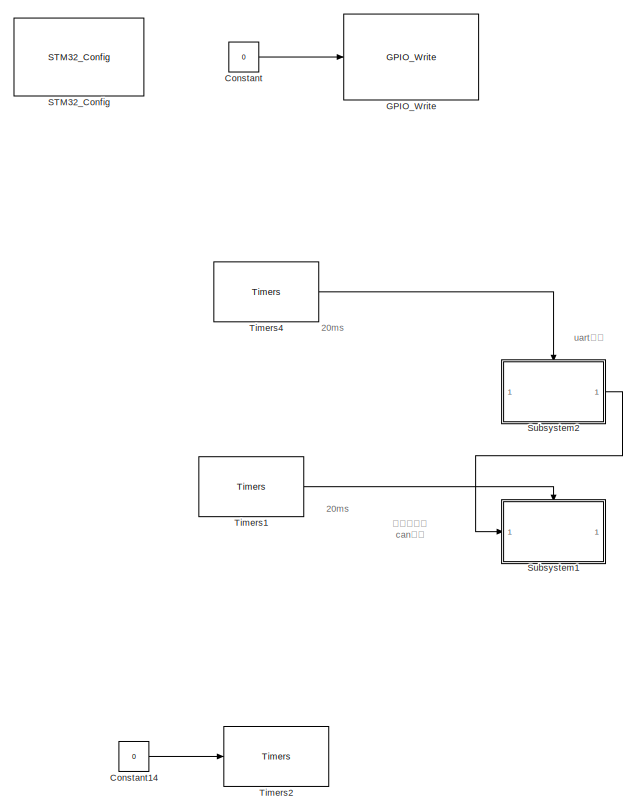
[diagram: root canvas - part 1/2, left side, full height]
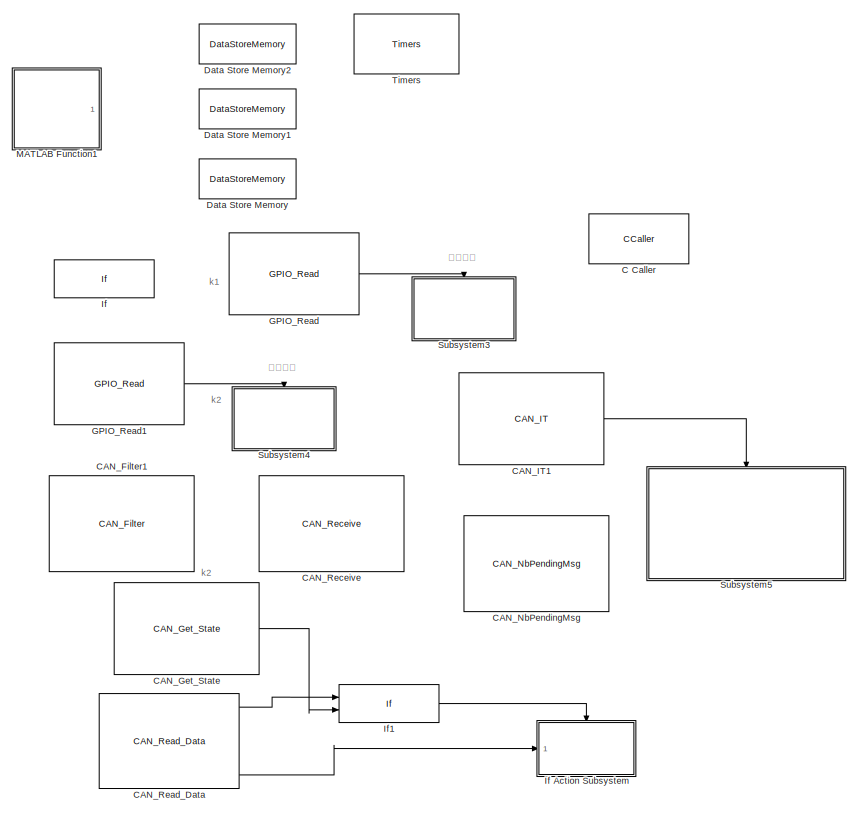
[diagram: root canvas - part 2/2, right side, full height]
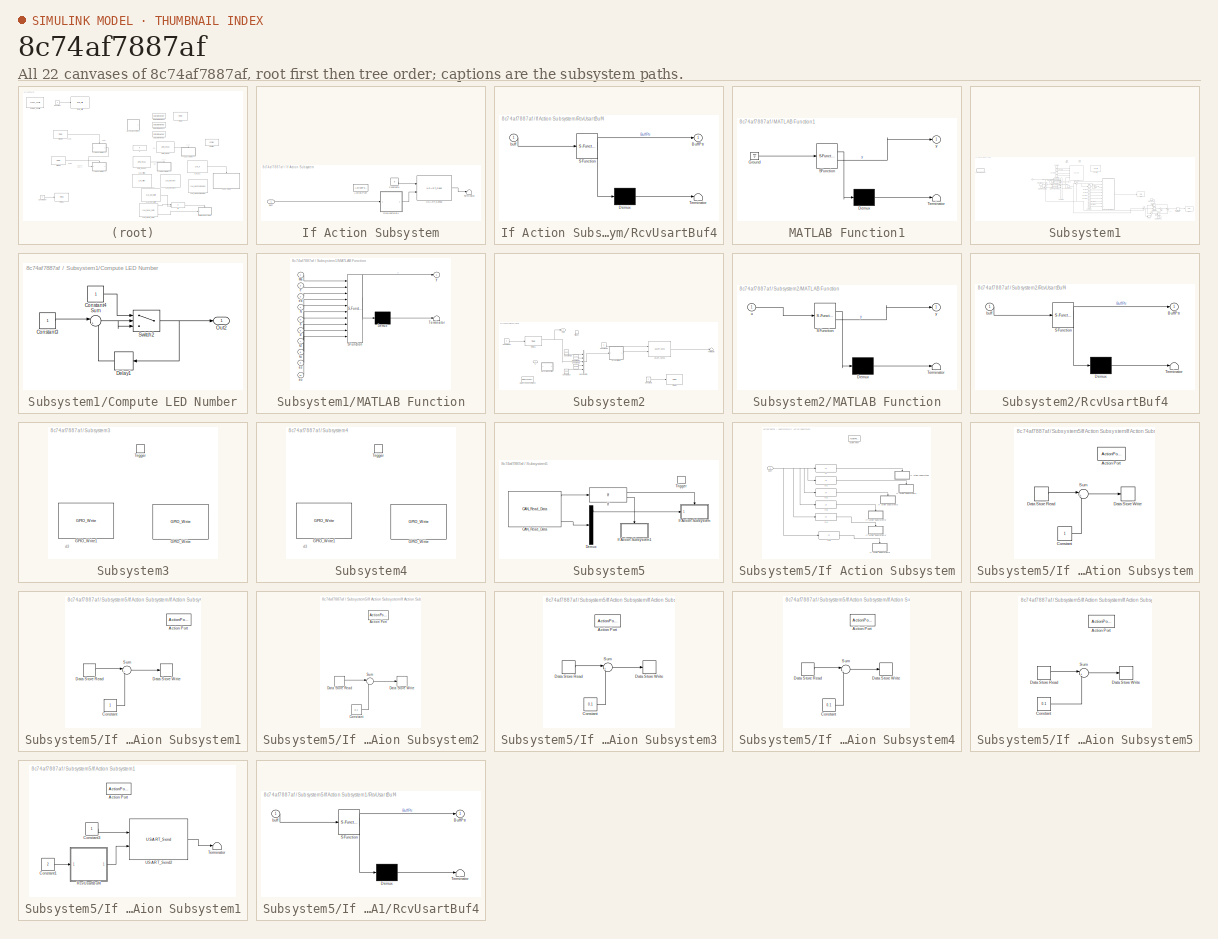
[diagram: thumbnail index - all 22 canvases of the model, root first then tree order]
MODEL slx_8c74af7887af
KIND model
CONFIG AbsTol = auto
CONFIG EnableMultiTasking = off
CONFIG FixedStep = 0.001
CONFIG MaxStep = auto
CONFIG MinStep = auto
CONFIG RelTol = 1e-3
CONFIG SampleTimeConstraint = Unconstrained
CONFIG SolverName = FixedStepDiscrete
CONFIG StartTime = 0.0
CONFIG StopTime = 10.0
BLOCK [CCaller] C Caller
  FunctionName = ccpQueueWrite
  Ports = []
BLOCK [Reference] CAN_Filter1  REF=CAN_Lib/CAN_Filter
  NameLocation = top
  Ports = []
  SourceBlock = CAN_Lib/CAN_Filter
  SourceProductName = Target Support Package - STM32 Adapter
  SourceType = CAN_Filter
BLOCK [Reference] CAN_Get_State  REF=CAN_Lib/CAN_Get_State
  Commented = on
  NameLocation = top
  Ports = [0, 1]
  SourceBlock = CAN_Lib/CAN_Get_State
  SourceProductName = Target Support Package - STM32 Adapter
  SourceType = CAN_Get_State
BLOCK [Reference] CAN_IT1  REF=CAN_Lib/CAN_IT
  NameLocation = top
  Ports = [0, 1]
  SourceBlock = CAN_Lib/CAN_IT
  SourceProductName = Target Support Package - STM32 Adapter
  SourceType = CAN_IT
BLOCK [Reference] CAN_NbPendingMsg  REF=CAN_Lib/CAN_NbPendingMsg
  NameLocation = top
  Ports = [0, 1]
  SourceBlock = CAN_Lib/CAN_NbPendingMsg
  SourceProductName = Target Support Package - STM32 Adapter
  SourceType = CAN_NbPendingMsg
BLOCK [Reference] CAN_Read_Data  REF=CAN_Lib/CAN_Read_Data
  Commented = on
  NameLocation = top
  Ports = [0, 6]
  SourceBlock = CAN_Lib/CAN_Read_Data
  SourceProductName = Target Support Package - STM32 Adapter
  SourceType = CAN_Read_Data
BLOCK [Reference] CAN_Receive  REF=CAN_Lib/CAN_Receive
  NameLocation = top
  Ports = []
  SourceBlock = CAN_Lib/CAN_Receive
  SourceProductName = Target Support Package - STM32 Adapter
  SourceType = CAN_Receive
BLOCK [Constant] Constant
  Commented = on
  Value = 0
BLOCK [Constant] Constant14
  Commented = on
  OutDataTypeStr = uint16
  Value = 0
BLOCK [DataStoreMemory] Data Store Memory
  DataStoreName = execpt
  InitialValue = 10
  ShowAdditionalParam = off
  WriteAfterWriteMsg = warning
BLOCK [DataStoreMemory] Data Store Memory1
  DataStoreName = kp
  InitialValue = 1
  ShowAdditionalParam = off
  WriteAfterWriteMsg = warning
BLOCK [DataStoreMemory] Data Store Memory2
  DataStoreName = ki
  InitialValue = 1
  ShowAdditionalParam = off
  WriteAfterWriteMsg = warning
BLOCK [Reference] GPIO_Read  REF=GPIO_Lib/GPIO_Read
  NameLocation = top
  Ports = [0, 1]
  SourceBlock = GPIO_Lib/GPIO_Read
  SourceProductName = Target Support Package - STM32 Adapter
  SourceType = GPIO_Read
BLOCK [Reference] GPIO_Read1  REF=GPIO_Lib/GPIO_Read
  NameLocation = top
  Ports = [0, 1]
  SourceBlock = GPIO_Lib/GPIO_Read
  SourceProductName = Target Support Package - STM32 Adapter
  SourceType = GPIO_Read
BLOCK [Reference] GPIO_Write  REF=GPIO_Lib/GPIO_Write
  Commented = on
  NameLocation = top
  Ports = [1]
  SourceBlock = GPIO_Lib/GPIO_Write
  SourceProductName = Target Support Package - STM32 Adapter
  SourceType = GPIO_Write
BLOCK [If] If
  Commented = on
  Ports = [1, 2]
BLOCK [SubSystem] If Action Subsystem
  Commented = on
  Ports = [1, 0, 0, 0, 0, 0, 0, 1]
  RequestExecContextInheritance = off
  TreatAsAtomicUnit = on
BLOCK [ActionPort] If Action Subsystem/Action Port
  ActionPortLabel = if(u1 == 0 & u2~=0)
BLOCK [Constant] If Action Subsystem/Constant3
  OutDataTypeStr = uint16
  Value = 8
BLOCK [SubSystem] If Action Subsystem/RcvUsartBuf4
  ErrorFcn = Stateflow.Translate.translate
  PermitHierarchicalResolution = ExplicitOnly
  Ports = [1, 1]
  RequestExecContextInheritance = off
  SFBlockType = MATLAB Function
  TreatAsAtomicUnit = on
BLOCK [Demux] If Action Subsystem/RcvUsartBuf4/ Demux 
  Outputs = 1
  Ports = [1, 1]
BLOCK [S-Function] If Action Subsystem/RcvUsartBuf4/ SFunction 
  EnableBusSupport = on
  FunctionName = sf_sfun
  PortCounts = [1 2]
  Ports = [1, 2]
  SFcnIsStateOwnerBlock = off
  SFunctionDeploymentMode = off
  Tag = Stateflow S-Function 5
BLOCK [Terminator] If Action Subsystem/RcvUsartBuf4/ Terminator 
BLOCK [Outport] If Action Subsystem/RcvUsartBuf4/BuffPtr
  VectorParamsAs1DForOutWhenUnconnected = off
BLOCK [Inport] If Action Subsystem/RcvUsartBuf4/buff
BLOCK [Terminator] If Action Subsystem/Terminator
BLOCK [Reference] If Action Subsystem/USART_Send2  REF=USART_Lib/USART_Send
  NameLocation = top
  Ports = [2, 1]
  SourceBlock = USART_Lib/USART_Send
  SourceProductName = Target Support Package - STM32 Adapter
  SourceType = USART_Send
BLOCK [Inport] If Action Subsystem/buff
BLOCK [If] If1
  Commented = on
  IfExpression = u1 == 0 & u2~=0
  NumInputs = 2
  Ports = [2, 1]
  ShowElse = off
BLOCK [SubSystem] MATLAB Function1
  Commented = on
  ErrorFcn = Stateflow.Translate.translate
  PermitHierarchicalResolution = ExplicitOnly
  Ports = [0, 1]
  RequestExecContextInheritance = off
  SFBlockType = MATLAB Function
  TreatAsAtomicUnit = on
BLOCK [Demux] MATLAB Function1/ Demux 
  Outputs = 1
  Ports = [1, 1]
BLOCK [Ground] MATLAB Function1/ Ground 
BLOCK [S-Function] MATLAB Function1/ SFunction 
  EnableBusSupport = on
  FunctionName = sf_sfun
  PortCounts = [1 2]
  Ports = [1, 2]
  SFcnIsStateOwnerBlock = off
  SFunctionDeploymentMode = off
  Tag = Stateflow S-Function 1
BLOCK [Terminator] MATLAB Function1/ Terminator 
BLOCK [Outport] MATLAB Function1/y
BLOCK [Reference] STM32_Config  REF=STM32_Config_Lib/STM32_Config
  NameLocation = top
  Ports = []
  Priority = 0
  SourceBlock = STM32_Config_Lib/STM32_Config
  SourceProductName = Target Support Package - STM32 Adapter
  SourceType = STM32_Config
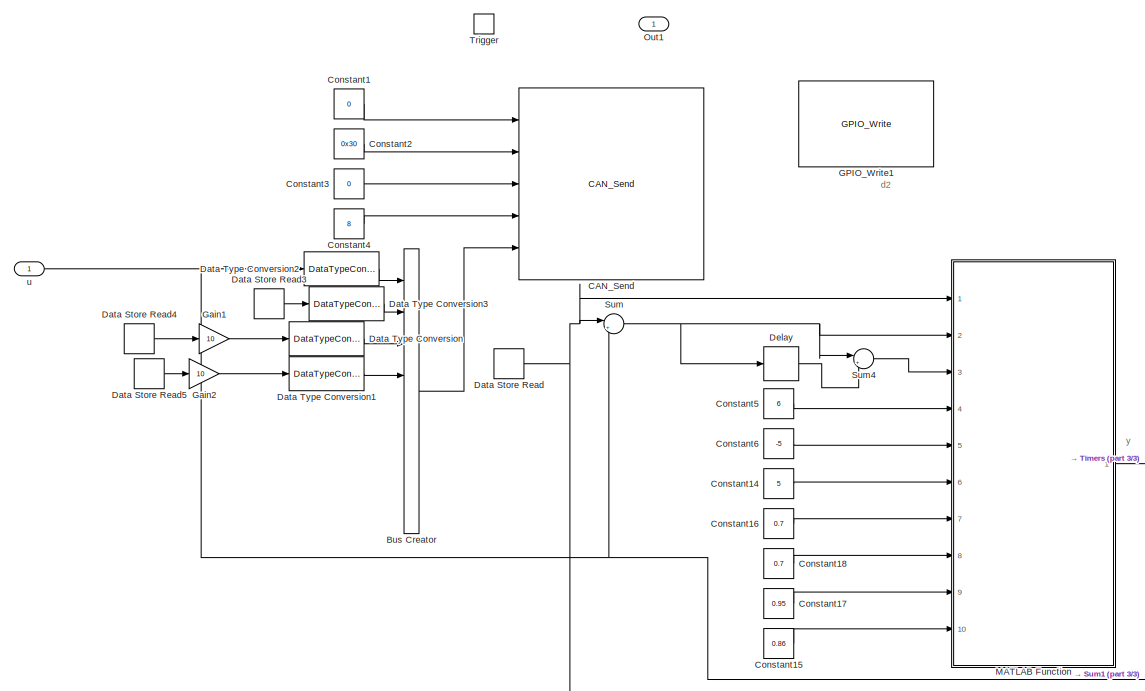
[diagram: Subsystem1 - part 1/3, center side, full height]
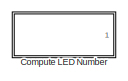
[diagram: Subsystem1 - part 2/3, top left region]
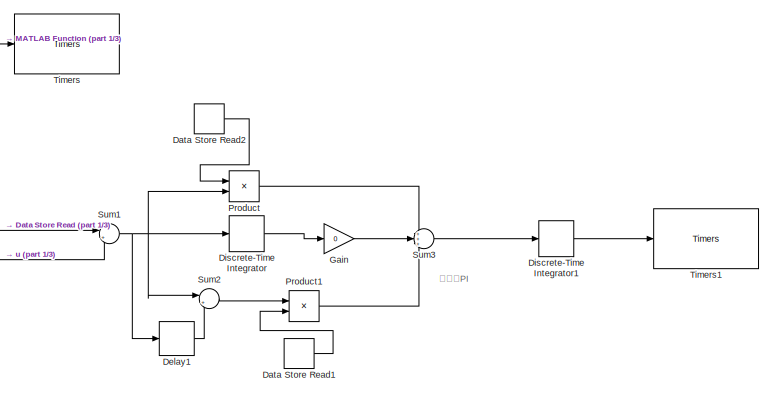
[diagram: Subsystem1 - part 3/3, bottom right region]
BLOCK [SubSystem] Subsystem1
  Ports = [1, 1, 0, 1]
  RequestExecContextInheritance = off
BLOCK [BusCreator] Subsystem1/Bus Creator
  DisplayOption = bar
  InheritFromInputs = on
  Inputs = 8
  Ports = [8, 1]
BLOCK [Reference] Subsystem1/CAN_Send  REF=CAN_Lib/CAN_Send
  NameLocation = top
  Ports = [5]
  SourceBlock = CAN_Lib/CAN_Send
  SourceProductName = Target Support Package - STM32 Adapter
  SourceType = CAN_Send
BLOCK [SubSystem] Subsystem1/Compute LED Number
  AttributesFormatString = Priority=%<Priority>
  Commented = on
  Ports = [0, 1]
  Priority = 21
  RTWFcnName = computeLedNumber
  RTWFcnNameOpts = User specified
  RTWSystemCode = Reusable function
  RequestExecContextInheritance = off
  TreatAsAtomicUnit = on
BLOCK [Constant] Subsystem1/Compute LED Number/Constant3
  OutDataTypeStr = uint8
BLOCK [Constant] Subsystem1/Compute LED Number/Constant4
  OutDataTypeStr = uint8
BLOCK [Delay] Subsystem1/Compute LED Number/Delay1
  DelayLength = 1
  InitialCondition = 0
  InputPortMap = u0
  Ports = [1, 1]
BLOCK [Outport] Subsystem1/Compute LED Number/Out2
  VectorParamsAs1DForOutWhenUnconnected = off
BLOCK [Sum] Subsystem1/Compute LED Number/Sum
  Inputs = |++
  Ports = [2, 1]
BLOCK [Switch] Subsystem1/Compute LED Number/Switch2
  Criteria = u2 > Threshold
  InputSameDT = off
  OutDataTypeStr = uint8
  SaturateOnIntegerOverflow = off
  Threshold = 4
BLOCK [Constant] Subsystem1/Constant1
  OutDataTypeStr = uint16
  Value = 0
BLOCK [Constant] Subsystem1/Constant14
  OutDataTypeStr = double
  Value = 5
BLOCK [Constant] Subsystem1/Constant15
  OutDataTypeStr = double
  Value = 0.86
BLOCK [Constant] Subsystem1/Constant16
  OutDataTypeStr = double
  Value = 0.7
BLOCK [Constant] Subsystem1/Constant17
  OutDataTypeStr = double
  Value = 0.95
BLOCK [Constant] Subsystem1/Constant18
  OutDataTypeStr = double
  Value = 0.7
BLOCK [Constant] Subsystem1/Constant2
  OutDataTypeStr = uint16
  Value = 0x30
BLOCK [Constant] Subsystem1/Constant3
  OutDataTypeStr = uint16
  Value = 0
BLOCK [Constant] Subsystem1/Constant4
  OutDataTypeStr = uint16
  Value = 8
BLOCK [Constant] Subsystem1/Constant5
  OutDataTypeStr = double
  Value = 6
BLOCK [Constant] Subsystem1/Constant6
  OutDataTypeStr = double
  Value = -5
BLOCK [DataStoreRead] Subsystem1/Data Store Read
  DataStoreName = execpt
  IndexOptions = Index vector (dialog)
  Indices = 1
  OutputSizes = 1
  Ports = [0, 1]
BLOCK [DataStoreRead] Subsystem1/Data Store Read1
  DataStoreName = kp
  IndexOptions = Index vector (dialog)
  Indices = 1
  OutputSizes = 1
  Ports = [0, 1]
BLOCK [DataStoreRead] Subsystem1/Data Store Read2
  DataStoreName = ki
  IndexOptions = Index vector (dialog)
  Indices = 1
  OutputSizes = 1
  Ports = [0, 1]
BLOCK [DataStoreRead] Subsystem1/Data Store Read3
  DataStoreName = execpt
  IndexOptions = Index vector (dialog)
  Indices = 1
  OutputSizes = 1
  Ports = [0, 1]
BLOCK [DataStoreRead] Subsystem1/Data Store Read4
  DataStoreName = ki
  IndexOptions = Index vector (dialog)
  Indices = 1
  OutputSizes = 1
  Ports = [0, 1]
BLOCK [DataStoreRead] Subsystem1/Data Store Read5
  DataStoreName = kp
  IndexOptions = Index vector (dialog)
  Indices = 1
  OutputSizes = 1
  Ports = [0, 1]
BLOCK [DataTypeConversion] Subsystem1/Data Type Conversion
  OutDataTypeStr = uint8
  RndMeth = Floor
  SaturateOnIntegerOverflow = off
BLOCK [DataTypeConversion] Subsystem1/Data Type Conversion1
  OutDataTypeStr = uint8
  RndMeth = Floor
  SaturateOnIntegerOverflow = off
BLOCK [DataTypeConversion] Subsystem1/Data Type Conversion2
  OutDataTypeStr = uint8
  RndMeth = Floor
  SaturateOnIntegerOverflow = off
BLOCK [DataTypeConversion] Subsystem1/Data Type Conversion3
  OutDataTypeStr = uint8
  RndMeth = Floor
  SaturateOnIntegerOverflow = off
BLOCK [Delay] Subsystem1/Delay
  DelayLength = 1
  InitialCondition = 0
  InputPortMap = u0
  Ports = [1, 1]
BLOCK [Delay] Subsystem1/Delay1
  DelayLength = 1
  InitialCondition = 0
  InputPortMap = u0
  Ports = [1, 1]
BLOCK [DiscreteIntegrator] Subsystem1/Discrete-Time Integrator
  ICPrevOutput = DiscIntNeverNeededParam
  ICPrevScaledInput = DiscIntNeverNeededParam
  InitialConditionSetting = Auto
  Ports = [1, 1]
  SampleTime = -1
BLOCK [DiscreteIntegrator] Subsystem1/Discrete-Time Integrator1
  ICPrevOutput = DiscIntNeverNeededParam
  ICPrevScaledInput = DiscIntNeverNeededParam
  InitialConditionSetting = Auto
  Ports = [1, 1]
  SampleTime = -1
BLOCK [Reference] Subsystem1/GPIO_Write1  REF=GPIO_Lib/GPIO_Write
  NameLocation = top
  Ports = []
  SourceBlock = GPIO_Lib/GPIO_Write
  SourceProductName = Target Support Package - STM32 Adapter
  SourceType = GPIO_Write
BLOCK [Gain] Subsystem1/Gain
  Gain = 0
BLOCK [Gain] Subsystem1/Gain1
  Gain = 10
BLOCK [Gain] Subsystem1/Gain2
  Gain = 10
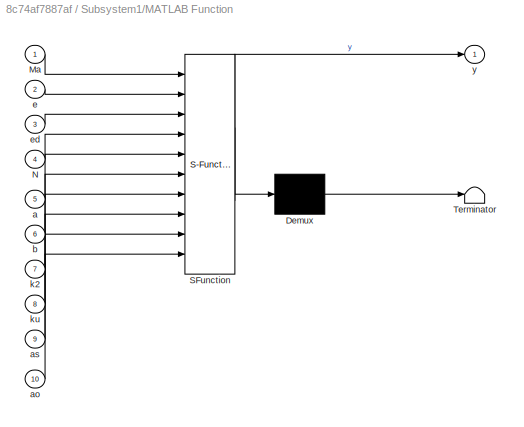
BLOCK [SubSystem] Subsystem1/MATLAB Function
  ErrorFcn = Stateflow.Translate.translate
  PermitHierarchicalResolution = ExplicitOnly
  Ports = [10, 1]
  RequestExecContextInheritance = off
  SFBlockType = MATLAB Function
  TreatAsAtomicUnit = on
BLOCK [Demux] Subsystem1/MATLAB Function/ Demux 
  Outputs = 1
  Ports = [1, 1]
BLOCK [S-Function] Subsystem1/MATLAB Function/ SFunction 
  EnableBusSupport = on
  FunctionName = sf_sfun
  PortCounts = [10 2]
  Ports = [10, 2]
  SFcnIsStateOwnerBlock = off
  SFunctionDeploymentMode = off
  Tag = Stateflow S-Function 2
BLOCK [Terminator] Subsystem1/MATLAB Function/ Terminator 
BLOCK [Inport] Subsystem1/MATLAB Function/Ma
BLOCK [Inport] Subsystem1/MATLAB Function/N
  Port = 4
BLOCK [Inport] Subsystem1/MATLAB Function/a
  Port = 5
BLOCK [Inport] Subsystem1/MATLAB Function/ao
  Port = 10
BLOCK [Inport] Subsystem1/MATLAB Function/as
  Port = 9
BLOCK [Inport] Subsystem1/MATLAB Function/b
  Port = 6
BLOCK [Inport] Subsystem1/MATLAB Function/e
  Port = 2
BLOCK [Inport] Subsystem1/MATLAB Function/ed
  Port = 3
BLOCK [Inport] Subsystem1/MATLAB Function/k2
  Port = 7
BLOCK [Inport] Subsystem1/MATLAB Function/ku
  Port = 8
BLOCK [Outport] Subsystem1/MATLAB Function/y
BLOCK [Outport] Subsystem1/Out1
BLOCK [Product] Subsystem1/Product
  Ports = [2, 1]
BLOCK [Product] Subsystem1/Product1
  Ports = [2, 1]
BLOCK [Sum] Subsystem1/Sum
  Inputs = |+-
  Ports = [2, 1]
BLOCK [Sum] Subsystem1/Sum1
  Inputs = |+-
  Ports = [2, 1]
BLOCK [Sum] Subsystem1/Sum2
  Inputs = |+-
  Ports = [2, 1]
BLOCK [Sum] Subsystem1/Sum3
  Inputs = +++
  Ports = [3, 1]
BLOCK [Sum] Subsystem1/Sum4
  Inputs = |+-
  Ports = [2, 1]
BLOCK [Reference] Subsystem1/Timers  REF=TIMERS_Lib/Timers
  Commented = on
  NameLocation = top
  Ports = [1]
  SourceBlock = TIMERS_Lib/Timers
  SourceProductName = Target Support Package - STM32 Adapter
  SourceType = Timers
BLOCK [Reference] Subsystem1/Timers1  REF=TIMERS_Lib/Timers
  NameLocation = top
  Ports = [1]
  SourceBlock = TIMERS_Lib/Timers
  SourceProductName = Target Support Package - STM32 Adapter
  SourceType = Timers
BLOCK [TriggerPort] Subsystem1/Trigger
  PortDimensions = 1
  Ports = []
  StatesWhenEnabling = held
  TriggerType = function-call
  VariantControl = (inherit)
BLOCK [Inport] Subsystem1/u
BLOCK [SubSystem] Subsystem2
  Ports = [1, 1, 0, 1]
  RequestExecContextInheritance = off
BLOCK [BusCreator] Subsystem2/Bus Creator1
  DisplayOption = bar
  InheritFromInputs = on
  Inputs = 5
  Ports = [5, 1]
BLOCK [Constant] Subsystem2/Constant1
  NameLocation = top
  OutDataTypeStr = uint16
BLOCK [Constant] Subsystem2/Constant13
  OutDataTypeStr = uint16
  Value = 5
BLOCK [Constant] Subsystem2/Constant14
  OutDataTypeStr = uint16
  Value = 0
BLOCK [Constant] Subsystem2/Constant15
  OutDataTypeStr = uint8
  Value = 0x03
BLOCK [Constant] Subsystem2/Constant16
  OutDataTypeStr = uint8
  Value = 0x03
BLOCK [Constant] Subsystem2/Constant17
  OutDataTypeStr = uint8
  Value = 0xFC
BLOCK [Constant] Subsystem2/Constant18
  OutDataTypeStr = uint8
  Value = 0xFC
BLOCK [DataTypeConversion] Subsystem2/Data Type Conversion2
  OutDataTypeStr = uint8
  OutMax = [255]
  OutMin = [0]
  RndMeth = Floor
  SaturateOnIntegerOverflow = off
BLOCK [SubSystem] Subsystem2/MATLAB Function
  ErrorFcn = Stateflow.Translate.translate
  PermitHierarchicalResolution = ExplicitOnly
  Ports = [1, 1]
  RequestExecContextInheritance = off
  SFBlockType = MATLAB Function
  TreatAsAtomicUnit = on
BLOCK [Demux] Subsystem2/MATLAB Function/ Demux 
  Outputs = 1
  Ports = [1, 1]
BLOCK [S-Function] Subsystem2/MATLAB Function/ SFunction 
  EnableBusSupport = on
  FunctionName = sf_sfun
  PortCounts = [1 2]
  Ports = [1, 2]
  SFcnIsStateOwnerBlock = off
  SFunctionDeploymentMode = off
  Tag = Stateflow S-Function 3
BLOCK [Terminator] Subsystem2/MATLAB Function/ Terminator 
BLOCK [Inport] Subsystem2/MATLAB Function/u
BLOCK [Outport] Subsystem2/MATLAB Function/y
BLOCK [Outport] Subsystem2/Out1
BLOCK [SubSystem] Subsystem2/RcvUsartBuf4
  ErrorFcn = Stateflow.Translate.translate
  PermitHierarchicalResolution = ExplicitOnly
  Ports = [1, 1]
  RequestExecContextInheritance = off
  SFBlockType = MATLAB Function
  TreatAsAtomicUnit = on
BLOCK [Demux] Subsystem2/RcvUsartBuf4/ Demux 
  Outputs = 1
  Ports = [1, 1]
BLOCK [S-Function] Subsystem2/RcvUsartBuf4/ SFunction 
  EnableBusSupport = on
  FunctionName = sf_sfun
  PortCounts = [1 2]
  Ports = [1, 2]
  SFcnIsStateOwnerBlock = off
  SFunctionDeploymentMode = off
  Tag = Stateflow S-Function 4
BLOCK [Terminator] Subsystem2/RcvUsartBuf4/ Terminator 
BLOCK [Outport] Subsystem2/RcvUsartBuf4/BuffPtr
  VectorParamsAs1DForOutWhenUnconnected = off
BLOCK [Inport] Subsystem2/RcvUsartBuf4/buff
BLOCK [Terminator] Subsystem2/Terminator
BLOCK [Reference] Subsystem2/Timers1  REF=TIMERS_Lib/Timers
  NameLocation = top
  Ports = [1, 2]
  SourceBlock = TIMERS_Lib/Timers
  SourceProductName = Target Support Package - STM32 Adapter
  SourceType = Timers
BLOCK [Reference] Subsystem2/Timers2  REF=TIMERS_Lib/Timers
  NameLocation = top
  Ports = [1, 2]
  SourceBlock = TIMERS_Lib/Timers
  SourceProductName = Target Support Package - STM32 Adapter
  SourceType = Timers
BLOCK [TriggerPort] Subsystem2/Trigger
  PortDimensions = 1
  Ports = []
  StatesWhenEnabling = held
  TriggerType = function-call
  VariantControl = (inherit)
BLOCK [Reference] Subsystem2/USART_Send2  REF=USART_Lib/USART_Send
  NameLocation = top
  Ports = [2, 1]
  SourceBlock = USART_Lib/USART_Send
  SourceProductName = Target Support Package - STM32 Adapter
  SourceType = USART_Send
BLOCK [Inport] Subsystem2/u
BLOCK [SubSystem] Subsystem3
  Commented = on
  Ports = [0, 0, 0, 1]
  RequestExecContextInheritance = off
BLOCK [Reference] Subsystem3/GPIO_Write  REF=GPIO_Lib/GPIO_Write
  NameLocation = top
  Ports = []
  SourceBlock = GPIO_Lib/GPIO_Write
  SourceProductName = Target Support Package - STM32 Adapter
  SourceType = GPIO_Write
BLOCK [Reference] Subsystem3/GPIO_Write1  REF=GPIO_Lib/GPIO_Write
  NameLocation = top
  Ports = []
  SourceBlock = GPIO_Lib/GPIO_Write
  SourceProductName = Target Support Package - STM32 Adapter
  SourceType = GPIO_Write
BLOCK [TriggerPort] Subsystem3/Trigger
  PortDimensions = 1
  Ports = []
  StatesWhenEnabling = held
  TriggerType = falling
  VariantControl = (inherit)
BLOCK [SubSystem] Subsystem4
  Ports = [0, 0, 0, 1]
  RequestExecContextInheritance = off
BLOCK [Reference] Subsystem4/GPIO_Write  REF=GPIO_Lib/GPIO_Write
  NameLocation = top
  Ports = []
  SourceBlock = GPIO_Lib/GPIO_Write
  SourceProductName = Target Support Package - STM32 Adapter
  SourceType = GPIO_Write
BLOCK [Reference] Subsystem4/GPIO_Write1  REF=GPIO_Lib/GPIO_Write
  NameLocation = top
  Ports = []
  SourceBlock = GPIO_Lib/GPIO_Write
  SourceProductName = Target Support Package - STM32 Adapter
  SourceType = GPIO_Write
BLOCK [TriggerPort] Subsystem4/Trigger
  PortDimensions = 1
  Ports = []
  StatesWhenEnabling = held
  TriggerType = falling
  VariantControl = (inherit)
BLOCK [SubSystem] Subsystem5
  Ports = [0, 0, 0, 1]
  RequestExecContextInheritance = off
BLOCK [Reference] Subsystem5/CAN_Read_Data  REF=CAN_Lib/CAN_Read_Data
  NameLocation = top
  Ports = [0, 6]
  SourceBlock = CAN_Lib/CAN_Read_Data
  SourceProductName = Target Support Package - STM32 Adapter
  SourceType = CAN_Read_Data
BLOCK [Demux] Subsystem5/Demux
  Outputs = 8
  Ports = [1, 8]
BLOCK [If] Subsystem5/If
  IfExpression = u1 == 1
  Ports = [1, 2]
BLOCK [SubSystem] Subsystem5/If Action Subsystem
  Ports = [1, 0, 0, 0, 0, 0, 0, 1]
  RequestExecContextInheritance = off
  TreatAsAtomicUnit = on
BLOCK [ActionPort] Subsystem5/If Action Subsystem/Action Port
  ActionPortLabel = if(u1 == 1)
BLOCK [If] Subsystem5/If Action Subsystem/If
  IfExpression = u1 ==1
  Ports = [1, 1]
  ShowElse = off
BLOCK [SubSystem] Subsystem5/If Action Subsystem/If Action Subsystem
  Ports = [0, 0, 0, 0, 0, 0, 0, 1]
  RequestExecContextInheritance = off
  TreatAsAtomicUnit = on
BLOCK [ActionPort] Subsystem5/If Action Subsystem/If Action Subsystem/Action Port
  ActionPortLabel = if(u1 ==1)
BLOCK [Constant] Subsystem5/If Action Subsystem/If Action Subsystem/Constant
BLOCK [DataStoreRead] Subsystem5/If Action Subsystem/If Action Subsystem/Data Store Read
  DataStoreName = execpt
  IndexOptions = Index vector (dialog)
  Indices = 1
  OutputSizes = 1
  Ports = [0, 1]
BLOCK [DataStoreWrite] Subsystem5/If Action Subsystem/If Action Subsystem/Data Store Write
  DataStoreName = execpt
  IndexOptions = Index vector (dialog)
  Indices = 1
  OutputSizes = 1
  Ports = [1]
BLOCK [Sum] Subsystem5/If Action Subsystem/If Action Subsystem/Sum
  Inputs = |++
  Ports = [2, 1]
BLOCK [SubSystem] Subsystem5/If Action Subsystem/If Action Subsystem1
  Ports = [0, 0, 0, 0, 0, 0, 0, 1]
  RequestExecContextInheritance = off
  TreatAsAtomicUnit = on
BLOCK [ActionPort] Subsystem5/If Action Subsystem/If Action Subsystem1/Action Port
  ActionPortLabel = if(u1 ==2)
BLOCK [Constant] Subsystem5/If Action Subsystem/If Action Subsystem1/Constant
BLOCK [DataStoreRead] Subsystem5/If Action Subsystem/If Action Subsystem1/Data Store Read
  DataStoreName = execpt
  IndexOptions = Index vector (dialog)
  Indices = 1
  OutputSizes = 1
  Ports = [0, 1]
BLOCK [DataStoreWrite] Subsystem5/If Action Subsystem/If Action Subsystem1/Data Store Write
  DataStoreName = execpt
  IndexOptions = Index vector (dialog)
  Indices = 1
  OutputSizes = 1
  Ports = [1]
BLOCK [Sum] Subsystem5/If Action Subsystem/If Action Subsystem1/Sum
  Inputs = |+-
  Ports = [2, 1]
BLOCK [SubSystem] Subsystem5/If Action Subsystem/If Action Subsystem2
  Ports = [0, 0, 0, 0, 0, 0, 0, 1]
  RequestExecContextInheritance = off
  TreatAsAtomicUnit = on
BLOCK [ActionPort] Subsystem5/If Action Subsystem/If Action Subsystem2/Action Port
  ActionPortLabel = if(u1 ==3)
BLOCK [Constant] Subsystem5/If Action Subsystem/If Action Subsystem2/Constant
  Value = 0.1
BLOCK [DataStoreRead] Subsystem5/If Action Subsystem/If Action Subsystem2/Data Store Read
  DataStoreName = ki
  IndexOptions = Index vector (dialog)
  Indices = 1
  OutputSizes = 1
  Ports = [0, 1]
BLOCK [DataStoreWrite] Subsystem5/If Action Subsystem/If Action Subsystem2/Data Store Write
  DataStoreName = ki
  IndexOptions = Index vector (dialog)
  Indices = 1
  OutputSizes = 1
  Ports = [1]
BLOCK [Sum] Subsystem5/If Action Subsystem/If Action Subsystem2/Sum
  Inputs = |++
  Ports = [2, 1]
BLOCK [SubSystem] Subsystem5/If Action Subsystem/If Action Subsystem3
  Ports = [0, 0, 0, 0, 0, 0, 0, 1]
  RequestExecContextInheritance = off
  TreatAsAtomicUnit = on
BLOCK [ActionPort] Subsystem5/If Action Subsystem/If Action Subsystem3/Action Port
  ActionPortLabel = if(u1 ==4)
BLOCK [Constant] Subsystem5/If Action Subsystem/If Action Subsystem3/Constant
  Value = 0.1
BLOCK [DataStoreRead] Subsystem5/If Action Subsystem/If Action Subsystem3/Data Store Read
  DataStoreName = ki
  IndexOptions = Index vector (dialog)
  Indices = 1
  OutputSizes = 1
  Ports = [0, 1]
BLOCK [DataStoreWrite] Subsystem5/If Action Subsystem/If Action Subsystem3/Data Store Write
  DataStoreName = ki
  IndexOptions = Index vector (dialog)
  Indices = 1
  OutputSizes = 1
  Ports = [1]
BLOCK [Sum] Subsystem5/If Action Subsystem/If Action Subsystem3/Sum
  Inputs = |+-
  Ports = [2, 1]
BLOCK [SubSystem] Subsystem5/If Action Subsystem/If Action Subsystem4
  Ports = [0, 0, 0, 0, 0, 0, 0, 1]
  RequestExecContextInheritance = off
  TreatAsAtomicUnit = on
BLOCK [ActionPort] Subsystem5/If Action Subsystem/If Action Subsystem4/Action Port
  ActionPortLabel = if(u1 ==5)
BLOCK [Constant] Subsystem5/If Action Subsystem/If Action Subsystem4/Constant
  Value = 0.1
BLOCK [DataStoreRead] Subsystem5/If Action Subsystem/If Action Subsystem4/Data Store Read
  DataStoreName = kp
  IndexOptions = Index vector (dialog)
  Indices = 1
  OutputSizes = 1
  Ports = [0, 1]
BLOCK [DataStoreWrite] Subsystem5/If Action Subsystem/If Action Subsystem4/Data Store Write
  DataStoreName = kp
  IndexOptions = Index vector (dialog)
  Indices = 1
  OutputSizes = 1
  Ports = [1]
BLOCK [Sum] Subsystem5/If Action Subsystem/If Action Subsystem4/Sum
  Inputs = |++
  Ports = [2, 1]
BLOCK [SubSystem] Subsystem5/If Action Subsystem/If Action Subsystem5
  Ports = [0, 0, 0, 0, 0, 0, 0, 1]
  RequestExecContextInheritance = off
  TreatAsAtomicUnit = on
BLOCK [ActionPort] Subsystem5/If Action Subsystem/If Action Subsystem5/Action Port
  ActionPortLabel = if(u1 ==6)
BLOCK [Constant] Subsystem5/If Action Subsystem/If Action Subsystem5/Constant
  Value = 0.1
BLOCK [DataStoreRead] Subsystem5/If Action Subsystem/If Action Subsystem5/Data Store Read
  DataStoreName = kp
  IndexOptions = Index vector (dialog)
  Indices = 1
  OutputSizes = 1
  Ports = [0, 1]
BLOCK [DataStoreWrite] Subsystem5/If Action Subsystem/If Action Subsystem5/Data Store Write
  DataStoreName = kp
  IndexOptions = Index vector (dialog)
  Indices = 1
  OutputSizes = 1
  Ports = [1]
BLOCK [Sum] Subsystem5/If Action Subsystem/If Action Subsystem5/Sum
  Inputs = |+-
  Ports = [2, 1]
BLOCK [If] Subsystem5/If Action Subsystem/If1
  IfExpression = u1 ==2
  Ports = [1, 1]
  ShowElse = off
BLOCK [If] Subsystem5/If Action Subsystem/If2
  IfExpression = u1 ==3
  Ports = [1, 1]
  ShowElse = off
BLOCK [If] Subsystem5/If Action Subsystem/If3
  IfExpression = u1 ==4
  Ports = [1, 1]
  ShowElse = off
BLOCK [If] Subsystem5/If Action Subsystem/If4
  IfExpression = u1 ==5
  Ports = [1, 1]
  ShowElse = off
BLOCK [If] Subsystem5/If Action Subsystem/If5
  IfExpression = u1 ==6
  Ports = [1, 1]
  ShowElse = off
BLOCK [Inport] Subsystem5/If Action Subsystem/buff
BLOCK [SubSystem] Subsystem5/If Action Subsystem1
  Ports = [0, 0, 0, 0, 0, 0, 0, 1]
  RequestExecContextInheritance = off
  TreatAsAtomicUnit = on
BLOCK [ActionPort] Subsystem5/If Action Subsystem1/Action Port
  ActionPortLabel = else
BLOCK [Constant] Subsystem5/If Action Subsystem1/Constant1
  Commented = on
  OutDataTypeStr = uint16
  Value = 2
BLOCK [Constant] Subsystem5/If Action Subsystem1/Constant3
  Commented = on
  OutDataTypeStr = uint16
BLOCK [SubSystem] Subsystem5/If Action Subsystem1/RcvUsartBuf4
  Commented = on
  ErrorFcn = Stateflow.Translate.translate
  PermitHierarchicalResolution = ExplicitOnly
  Ports = [1, 1]
  RequestExecContextInheritance = off
  SFBlockType = MATLAB Function
  TreatAsAtomicUnit = on
BLOCK [Demux] Subsystem5/If Action Subsystem1/RcvUsartBuf4/ Demux 
  Outputs = 1
  Ports = [1, 1]
BLOCK [S-Function] Subsystem5/If Action Subsystem1/RcvUsartBuf4/ SFunction 
  EnableBusSupport = on
  FunctionName = sf_sfun
  PortCounts = [1 2]
  Ports = [1, 2]
  SFcnIsStateOwnerBlock = off
  SFunctionDeploymentMode = off
  Tag = Stateflow S-Function 7
BLOCK [Terminator] Subsystem5/If Action Subsystem1/RcvUsartBuf4/ Terminator 
BLOCK [Outport] Subsystem5/If Action Subsystem1/RcvUsartBuf4/BuffPtr
  VectorParamsAs1DForOutWhenUnconnected = off
BLOCK [Inport] Subsystem5/If Action Subsystem1/RcvUsartBuf4/buff
BLOCK [Terminator] Subsystem5/If Action Subsystem1/Terminator
  Commented = on
BLOCK [Reference] Subsystem5/If Action Subsystem1/USART_Send2  REF=USART_Lib/USART_Send
  Commented = on
  NameLocation = top
  Ports = [2, 1]
  SourceBlock = USART_Lib/USART_Send
  SourceProductName = Target Support Package - STM32 Adapter
  SourceType = USART_Send
BLOCK [TriggerPort] Subsystem5/Trigger
  PortDimensions = 1
  Ports = []
  StatesWhenEnabling = held
  TriggerType = function-call
  VariantControl = (inherit)
BLOCK [Reference] Timers  REF=TIMERS_Lib/Timers
  Commented = on
  NameLocation = top
  Ports = [1]
  SourceBlock = TIMERS_Lib/Timers
  SourceProductName = Target Support Package - STM32 Adapter
  SourceType = Timers
BLOCK [Reference] Timers1  REF=TIMERS_Lib/Timers
  NameLocation = top
  Ports = [0, 1]
  SourceBlock = TIMERS_Lib/Timers
  SourceProductName = Target Support Package - STM32 Adapter
  SourceType = Timers
BLOCK [Reference] Timers2  REF=TIMERS_Lib/Timers
  Commented = on
  NameLocation = top
  Ports = [1, 2]
  SourceBlock = TIMERS_Lib/Timers
  SourceProductName = Target Support Package - STM32 Adapter
  SourceType = Timers
BLOCK [Reference] Timers4  REF=TIMERS_Lib/Timers
  NameLocation = top
  Ports = [0, 1]
  SourceBlock = TIMERS_Lib/Timers
  SourceProductName = Target Support Package - STM32 Adapter
  SourceType = Timers
ANNOTATION (root): 20ms
ANNOTATION (root): k1
ANNOTATION (root): k2
ANNOTATION (root): uart串口
ANNOTATION (root): 开启电机
ANNOTATION (root): 编码器读取 can通信
ANNOTATION Subsystem1: y
ANNOTATION Subsystem1: d2
ANNOTATION Subsystem1: 增量式PI
ANNOTATION Subsystem3: d3
ANNOTATION Subsystem4: d3
LINE CAN_Get_State:1 -> If1:2
LINE CAN_IT1:1 -> Subsystem5:trigger
LINE CAN_Read_Data:1 -> If1:1
LINE CAN_Read_Data:6 -> If Action Subsystem:1
LINE Constant14:1 -> Timers2:1
LINE Constant:1 -> GPIO_Write:1
LINE GPIO_Read1:1 -> Subsystem4:trigger
LINE GPIO_Read:1 -> Subsystem3:trigger
LINE If Action Subsystem/Constant3:1 -> If Action Subsystem/USART_Send2:1
LINE If Action Subsystem/RcvUsartBuf4:1 -> If Action Subsystem/USART_Send2:2
LINE If Action Subsystem/USART_Send2:1 -> If Action Subsystem/Terminator:1
LINE If Action Subsystem/buff:1 -> If Action Subsystem/RcvUsartBuf4:1
LINE If1:1 -> If Action Subsystem:ifaction
LINE Subsystem1/Bus Creator:1 -> Subsystem1/CAN_Send:5
LINE Subsystem1/Compute LED Number/Constant3:1 -> Subsystem1/Compute LED Number/Sum:1
LINE Subsystem1/Compute LED Number/Constant4:1 -> Subsystem1/Compute LED Number/Switch2:1
LINE Subsystem1/Compute LED Number/Delay1:1 -> Subsystem1/Compute LED Number/Sum:2
NET Subsystem1/Compute LED Number/Sum:1 -> Subsystem1/Compute LED Number/Switch2:2, Subsystem1/Compute LED Number/Switch2:3
NET Subsystem1/Compute LED Number/Switch2:1 -> Subsystem1/Compute LED Number/Delay1:1, Subsystem1/Compute LED Number/Out2:1
LINE Subsystem1/Constant14:1 -> Subsystem1/MATLAB Function:6
LINE Subsystem1/Constant15:1 -> Subsystem1/MATLAB Function:10
LINE Subsystem1/Constant16:1 -> Subsystem1/MATLAB Function:7
LINE Subsystem1/Constant17:1 -> Subsystem1/MATLAB Function:9
LINE Subsystem1/Constant18:1 -> Subsystem1/MATLAB Function:8
LINE Subsystem1/Constant1:1 -> Subsystem1/CAN_Send:1
LINE Subsystem1/Constant2:1 -> Subsystem1/CAN_Send:2
LINE Subsystem1/Constant3:1 -> Subsystem1/CAN_Send:3
LINE Subsystem1/Constant4:1 -> Subsystem1/CAN_Send:4
LINE Subsystem1/Constant5:1 -> Subsystem1/MATLAB Function:4
LINE Subsystem1/Constant6:1 -> Subsystem1/MATLAB Function:5
LINE Subsystem1/Data Store Read1:1 -> Subsystem1/Product1:2
LINE Subsystem1/Data Store Read2:1 -> Subsystem1/Product:1
LINE Subsystem1/Data Store Read3:1 -> Subsystem1/Data Type Conversion3:1
LINE Subsystem1/Data Store Read4:1 -> Subsystem1/Gain1:1
LINE Subsystem1/Data Store Read5:1 -> Subsystem1/Gain2:1
NET Subsystem1/Data Store Read:1 -> Subsystem1/MATLAB Function:1, Subsystem1/Sum1:1, Subsystem1/Sum:1
LINE Subsystem1/Data Type Conversion1:1 -> Subsystem1/Bus Creator:4
LINE Subsystem1/Data Type Conversion2:1 -> Subsystem1/Bus Creator:1
LINE Subsystem1/Data Type Conversion3:1 -> Subsystem1/Bus Creator:2
LINE Subsystem1/Data Type Conversion:1 -> Subsystem1/Bus Creator:3
LINE Subsystem1/Delay1:1 -> Subsystem1/Sum2:2
LINE Subsystem1/Delay:1 -> Subsystem1/Sum4:2
LINE Subsystem1/Discrete-Time Integrator1:1 -> Subsystem1/Timers1:1
LINE Subsystem1/Discrete-Time Integrator:1 -> Subsystem1/Gain:1
LINE Subsystem1/Gain1:1 -> Subsystem1/Data Type Conversion:1
LINE Subsystem1/Gain2:1 -> Subsystem1/Data Type Conversion1:1
LINE Subsystem1/Gain:1 -> Subsystem1/Sum3:2
LINE Subsystem1/MATLAB Function:1 -> Subsystem1/Timers:1
LINE Subsystem1/Product1:1 -> Subsystem1/Sum3:3
LINE Subsystem1/Product:1 -> Subsystem1/Sum3:1
NET Subsystem1/Sum1:1 -> Subsystem1/Delay1:1, Subsystem1/Discrete-Time Integrator:1, Subsystem1/Product:2, Subsystem1/Sum2:1
LINE Subsystem1/Sum2:1 -> Subsystem1/Product1:1
LINE Subsystem1/Sum3:1 -> Subsystem1/Discrete-Time Integrator1:1
LINE Subsystem1/Sum4:1 -> Subsystem1/MATLAB Function:3
NET Subsystem1/Sum:1 -> Subsystem1/Delay:1, Subsystem1/MATLAB Function:2, Subsystem1/Sum4:1
NET Subsystem1/u:1 -> Subsystem1/Data Type Conversion2:1, Subsystem1/Sum1:2, Subsystem1/Sum:2
LINE Subsystem2/Bus Creator1:1 -> Subsystem2/RcvUsartBuf4:1
LINE Subsystem2/Constant13:1 -> Subsystem2/USART_Send2:1
LINE Subsystem2/Constant14:1 -> Subsystem2/Timers1:1
LINE Subsystem2/Constant15:1 -> Subsystem2/Bus Creator1:1
LINE Subsystem2/Constant16:1 -> Subsystem2/Bus Creator1:5
LINE Subsystem2/Constant17:1 -> Subsystem2/Bus Creator1:2
LINE Subsystem2/Constant18:1 -> Subsystem2/Bus Creator1:4
LINE Subsystem2/Constant1:1 -> Subsystem2/Timers2:1
LINE Subsystem2/RcvUsartBuf4:1 -> Subsystem2/USART_Send2:2
NET Subsystem2/Timers1:1 -> Subsystem2/Bus Creator1:3, Subsystem2/Out1:1
LINE Subsystem2/USART_Send2:1 -> Subsystem2/Terminator:1
LINE Subsystem2:1 -> Subsystem1:1
LINE Subsystem5/CAN_Read_Data:1 -> Subsystem5/If:1
LINE Subsystem5/CAN_Read_Data:6 -> Subsystem5/Demux:1
LINE Subsystem5/Demux:1 -> Subsystem5/If Action Subsystem:1
LINE Subsystem5/If Action Subsystem/If Action Subsystem/Constant:1 -> Subsystem5/If Action Subsystem/If Action Subsystem/Sum:2
LINE Subsystem5/If Action Subsystem/If Action Subsystem/Data Store Read:1 -> Subsystem5/If Action Subsystem/If Action Subsystem/Sum:1
LINE Subsystem5/If Action Subsystem/If Action Subsystem/Sum:1 -> Subsystem5/If Action Subsystem/If Action Subsystem/Data Store Write:1
LINE Subsystem5/If Action Subsystem/If Action Subsystem1/Constant:1 -> Subsystem5/If Action Subsystem/If Action Subsystem1/Sum:2
LINE Subsystem5/If Action Subsystem/If Action Subsystem1/Data Store Read:1 -> Subsystem5/If Action Subsystem/If Action Subsystem1/Sum:1
LINE Subsystem5/If Action Subsystem/If Action Subsystem1/Sum:1 -> Subsystem5/If Action Subsystem/If Action Subsystem1/Data Store Write:1
LINE Subsystem5/If Action Subsystem/If Action Subsystem2/Constant:1 -> Subsystem5/If Action Subsystem/If Action Subsystem2/Sum:2
LINE Subsystem5/If Action Subsystem/If Action Subsystem2/Data Store Read:1 -> Subsystem5/If Action Subsystem/If Action Subsystem2/Sum:1
LINE Subsystem5/If Action Subsystem/If Action Subsystem2/Sum:1 -> Subsystem5/If Action Subsystem/If Action Subsystem2/Data Store Write:1
LINE Subsystem5/If Action Subsystem/If Action Subsystem3/Constant:1 -> Subsystem5/If Action Subsystem/If Action Subsystem3/Sum:2
LINE Subsystem5/If Action Subsystem/If Action Subsystem3/Data Store Read:1 -> Subsystem5/If Action Subsystem/If Action Subsystem3/Sum:1
LINE Subsystem5/If Action Subsystem/If Action Subsystem3/Sum:1 -> Subsystem5/If Action Subsystem/If Action Subsystem3/Data Store Write:1
LINE Subsystem5/If Action Subsystem/If Action Subsystem4/Constant:1 -> Subsystem5/If Action Subsystem/If Action Subsystem4/Sum:2
LINE Subsystem5/If Action Subsystem/If Action Subsystem4/Data Store Read:1 -> Subsystem5/If Action Subsystem/If Action Subsystem4/Sum:1
LINE Subsystem5/If Action Subsystem/If Action Subsystem4/Sum:1 -> Subsystem5/If Action Subsystem/If Action Subsystem4/Data Store Write:1
LINE Subsystem5/If Action Subsystem/If Action Subsystem5/Constant:1 -> Subsystem5/If Action Subsystem/If Action Subsystem5/Sum:2
LINE Subsystem5/If Action Subsystem/If Action Subsystem5/Data Store Read:1 -> Subsystem5/If Action Subsystem/If Action Subsystem5/Sum:1
LINE Subsystem5/If Action Subsystem/If Action Subsystem5/Sum:1 -> Subsystem5/If Action Subsystem/If Action Subsystem5/Data Store Write:1
LINE Subsystem5/If Action Subsystem/If1:1 -> Subsystem5/If Action Subsystem/If Action Subsystem1:ifaction
LINE Subsystem5/If Action Subsystem/If2:1 -> Subsystem5/If Action Subsystem/If Action Subsystem2:ifaction
LINE Subsystem5/If Action Subsystem/If3:1 -> Subsystem5/If Action Subsystem/If Action Subsystem3:ifaction
LINE Subsystem5/If Action Subsystem/If4:1 -> Subsystem5/If Action Subsystem/If Action Subsystem4:ifaction
LINE Subsystem5/If Action Subsystem/If5:1 -> Subsystem5/If Action Subsystem/If Action Subsystem5:ifaction
LINE Subsystem5/If Action Subsystem/If:1 -> Subsystem5/If Action Subsystem/If Action Subsystem:ifaction
NET Subsystem5/If Action Subsystem/buff:1 -> Subsystem5/If Action Subsystem/If1:1, Subsystem5/If Action Subsystem/If2:1, Subsystem5/If Action Subsystem/If3:1, Subsystem5/If Action Subsystem/If4:1, Subsystem5/If Action Subsystem/If5:1, Subsystem5/If Action Subsystem/If:1
LINE Subsystem5/If Action Subsystem1/Constant1:1 -> Subsystem5/If Action Subsystem1/RcvUsartBuf4:1
LINE Subsystem5/If Action Subsystem1/Constant3:1 -> Subsystem5/If Action Subsystem1/USART_Send2:1
LINE Subsystem5/If Action Subsystem1/RcvUsartBuf4:1 -> Subsystem5/If Action Subsystem1/USART_Send2:2
LINE Subsystem5/If Action Subsystem1/USART_Send2:1 -> Subsystem5/If Action Subsystem1/Terminator:1
LINE Subsystem5/If:1 -> Subsystem5/If Action Subsystem:ifaction
LINE Subsystem5/If:2 -> Subsystem5/If Action Subsystem1:ifaction
LINE Timers1:1 -> Subsystem1:trigger
LINE Timers4:1 -> Subsystem2:trigger
note: NET lines group one-source signal fan-out (src -> all destinations, sorted); 1:1 wires keep LINE
CHART MATLAB Function1 states=1 transitions=1
  STATE_LABEL 'eML_blk_kernel()'
  STATE_LABEL 'SCRIPT:\nfunction y=global_execpt\nglobal execpt;\ny= execpt ;\n'
CHART Subsystem1/MATLAB Function states=1 transitions=1
  STATE_LABEL 'eML_blk_kernel()'
  STATE_LABEL 'SCRIPT:\nfunction y = fcn(Ma,e,ed,N,a,b,k2,ku,as,ao)\n\nE=-(2*N)*(e*k2-(a+b))/(b-a); \nE1=E;\nEC=-(2*N)*(ed-(a+b))/(b-a);\nEC1=270*EC;\na1=(1/N)*(as-ao)*abs(E1)+ao;\nu1=-(a1*E1+(1-a1)*EC1)/2;\ny=u1*ku*Ma;\n\nend\n\n'
CHART Subsystem2/MATLAB Function states=1 transitions=1
  STATE_LABEL 'eML_blk_kernel()'
  STATE_LABEL 'SCRIPT:\nfunction y = chu(u)\ny = uint8(u/256);\n%y = uint8(u/256);\n'
CHART Subsystem2/RcvUsartBuf4 states=1 transitions=1
  STATE_LABEL 'eML_blk_kernel()'
  STATE_LABEL "SCRIPT:\nfunction BuffPtr = convert(buff)\nif coder.target('Sfun')\n    % Executing in MATLAB, Buff is null\n    BuffPtr = uint32(0);\n    %NbChar = uint16(0);\nelse\n    coder.cinclude('getBuffPtr.h');\n    % Executing in the generated code.\n    BuffPtr = coder.ceval('getBuffPtr',coder.rref(buff));\nend\nend\n"  <repeated x3 — deduplicated; at blocks: RcvUsartBuf4, If Action>
CHART If Action
Subsystem/RcvUsartBuf4 states=1 transitions=1
  STATE_LABEL 'eML_blk_kernel()'
CHART Subsystem5/If Action
Subsystem1/RcvUsartBuf4 states=1 transitions=1
  STATE_LABEL 'eML_blk_kernel()'
CHART  states=0 transitions=0
CHART  states=0 transitions=0
CHART  states=0 transitions=0
CHART  states=0 transitions=0
CHART  states=0 transitions=0
CHART  states=0 transitions=0
